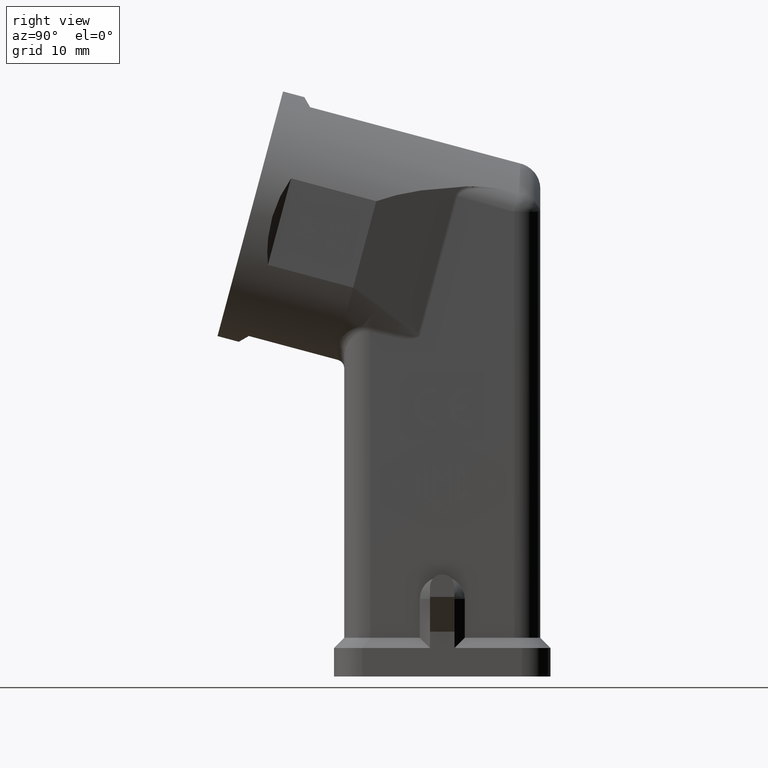
[diagram: clean part render]
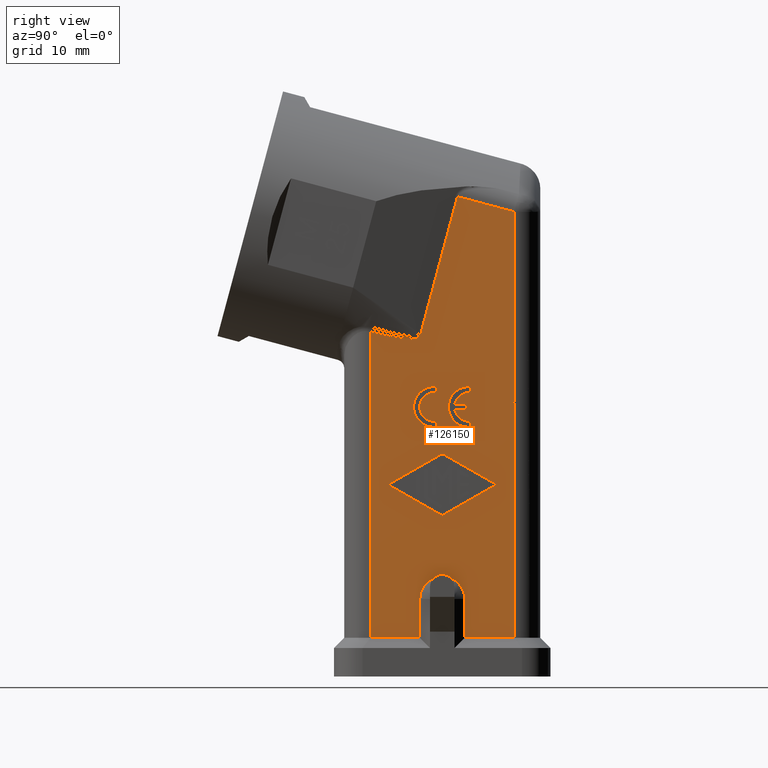
[diagram: same view with one face highlighted and labeled with its STEP entity id]
A machine part, right view. The second image highlights one B-rep face of the part: STEP entity #126150.
In plain terms, the highlighted planar face has unit normal (-1, -0, 0).
Its self-contained STEP definition (entity closure, byte-faithful):
#55330=CARTESIAN_POINT('',(12.,30.2856298515437,27.75));
#55340=VERTEX_POINT('',#55330);
#55520=CARTESIAN_POINT('',(12.,30.2856298515437,31.25));
#55530=VERTEX_POINT('',#55520);
#55560=CARTESIAN_POINT('',(12.,30.2856298515437,29.5));
#55570=DIRECTION('',(1.,-7.43639950456472E-17,0.));
#55580=DIRECTION('',(7.43639950456472E-17,1.,-1.49975978266186E-32));
#55590=AXIS2_PLACEMENT_3D('',#55560,#55570,#55580);
#55600=CIRCLE('',#55590,1.75);
#55610=EDGE_CURVE('',#55530,#55340,#55600,.T.);
#89820=CARTESIAN_POINT('',(12.,40.0856298515438,1.25));
#89830=VERTEX_POINT('',#89820);
#91130=CARTESIAN_POINT('',(12.,34.0356298515438,-3.5));
#91140=DIRECTION('',(0.,0.,1.));
#91150=VECTOR('',#91140,1.);
#91160=LINE('',#91130,#91150);
#91170=CARTESIAN_POINT('',(12.,34.0356298515438,1.25));
#91180=VERTEX_POINT('',#91170);
#91190=CARTESIAN_POINT('',(12.,34.0356298515438,6.));
#91200=VERTEX_POINT('',#91190);
#91210=EDGE_CURVE('',#91180,#91200,#91160,.T.);
#92410=CARTESIAN_POINT('',(12.,22.4856298515438,38.6973022111864));
#92420=VERTEX_POINT('',#92410);
#92450=CARTESIAN_POINT('',(12.,22.4856298515438,-3.5));
#92460=DIRECTION('',(0.,0.,1.));
#92470=VECTOR('',#92460,1.);
#92480=LINE('',#92450,#92470);
#92490=CARTESIAN_POINT('',(12.,22.4856298515438,1.25));
#92500=VERTEX_POINT('',#92490);
#92510=EDGE_CURVE('',#92500,#92420,#92480,.T.);
#99270=CARTESIAN_POINT('',(12.,1.44500153395515E-15,1.25));
#99280=DIRECTION('',(4.60527994506155E-17,-1.,-3.97228643331991E-17));
#99290=VECTOR('',#99280,1.);
#99300=LINE('',#99270,#99290);
#99310=EDGE_CURVE('',#89830,#91180,#99300,.T.);
#99530=CARTESIAN_POINT('',(12.,30.2856298515437,27.));
#99540=VERTEX_POINT('',#99530);
#99710=CARTESIAN_POINT('',(12.,30.5356298515438,27.));
#99720=VERTEX_POINT('',#99710);
#99750=CARTESIAN_POINT('',(12.,0.,27.));
#99760=DIRECTION('',(4.60527994506155E-17,-1.,2.46519032881566E-32));
#99770=VECTOR('',#99760,1.);
#99780=LINE('',#99750,#99770);
#99790=EDGE_CURVE('',#99720,#99540,#99780,.T.);
#104590=CARTESIAN_POINT('',(12.,30.5356298515438,27.75));
#104600=VERTEX_POINT('',#104590);
#104720=CARTESIAN_POINT('',(12.,0.,27.75));
#104730=DIRECTION('',(-4.60527994506155E-17,1.,-2.46519032881566E-32));
#104740=VECTOR('',#104730,1.);
#104750=LINE('',#104720,#104740);
#104760=EDGE_CURVE('',#55340,#104600,#104750,.T.);
#105960=CARTESIAN_POINT('',(12.,30.2856298515437,32.));
#105970=VERTEX_POINT('',#105960);
#106100=CARTESIAN_POINT('',(12.,30.2856298515437,29.5));
#106110=DIRECTION('',(1.,-7.43639950456472E-17,0.));
#106120=DIRECTION('',(7.43639950456472E-17,1.,-1.49975978266186E-32));
#106130=AXIS2_PLACEMENT_3D('',#106100,#106110,#106120);
#106140=CIRCLE('',#106130,2.5);
#106150=EDGE_CURVE('',#105970,#99540,#106140,.T.);
#110660=CARTESIAN_POINT('',(12.,28.6650454124902,38.4918329904324));
#110670=VERTEX_POINT('',#110660);
#110700=CARTESIAN_POINT('',(12.,28.6650454124902,38.4918329904324));
#110710=CARTESIAN_POINT('',(12.,28.658407552892,38.4710673852753));
#110720=CARTESIAN_POINT('',(12.,28.6513634272172,38.450508087265));
#110730=CARTESIAN_POINT('',(12.,28.640005236563,38.4200184276398));
#110740=CARTESIAN_POINT('',(12.,28.6360871726545,38.4099134223298));
#110750=CARTESIAN_POINT('',(12.,28.6279566102855,38.3898264786181));
#110760=CARTESIAN_POINT('',(12.,28.6237441118251,38.3798445402164));
#110770=CARTESIAN_POINT('',(12.,28.6149942465141,38.3600103680997));
#110780=CARTESIAN_POINT('',(12.,28.6104568796637,38.3501581343847));
#110790=CARTESIAN_POINT('',(12.,28.6010268437349,38.3305900094197));
#110800=CARTESIAN_POINT('',(12.,28.5961341746566,38.3208741181697));
#110810=CARTESIAN_POINT('',(12.,28.5859631004341,38.301585315913));
#110820=CARTESIAN_POINT('',(12.,28.5806846952899,38.2920124049062));
#110830=CARTESIAN_POINT('',(12.,28.5697117150978,38.2730162009143));
#110840=CARTESIAN_POINT('',(12.,28.5640171400499,38.2635929079292));
#110850=CARTESIAN_POINT('',(12.,28.5422303388771,38.2291884658578));
#110860=CARTESIAN_POINT('',(12.,28.5248991979087,38.2047668972134));
#110870=CARTESIAN_POINT('',(12.,28.4877035721447,38.1581561523663));
#110880=CARTESIAN_POINT('',(12.,28.467745836338,38.1358291851535));
#110890=CARTESIAN_POINT('',(12.,28.4255784797306,38.0936843482291));
#110900=CARTESIAN_POINT('',(12.,28.4032391209673,38.0737504443455));
#110910=CARTESIAN_POINT('',(12.,28.3545579582244,38.0347802246168));
#110920=CARTESIAN_POINT('',(12.,28.327907826425,38.0159319652352));
#110930=CARTESIAN_POINT('',(12.,28.2728658799483,37.9812144629596));
#110940=CARTESIAN_POINT('',(12.,28.2443990404622,37.9653500827794));
#110950=CARTESIAN_POINT('',(12.,28.1860840457942,37.9362996585203));
#110960=CARTESIAN_POINT('',(12.,28.1562294124759,37.9231676043697));
#110970=CARTESIAN_POINT('',(12.,28.0955300982708,37.8993005289112));
#110980=CARTESIAN_POINT('',(12.,28.0647391966876,37.8886281919675));
#110990=CARTESIAN_POINT('',(12.,28.006616458634,37.8706606655363));
#111000=CARTESIAN_POINT('',(12.,27.9794147616235,37.8631410243454));
#111010=CARTESIAN_POINT('',(12.,27.9245900709717,37.8494780249132));
#111020=CARTESIAN_POINT('',(12.,27.8970221223199,37.8433651991255));
#111030=CARTESIAN_POINT('',(12.,27.8415870327101,37.8323541313501));
#111040=CARTESIAN_POINT('',(12.,27.8137589565411,37.8274761711359));
#111050=CARTESIAN_POINT('',(12.,27.7578967632835,37.8187906204405));
#111060=CARTESIAN_POINT('',(12.,27.7298972606536,37.8149973351577));
#111070=CARTESIAN_POINT('',(12.,27.6736914499364,37.8083455470819));
#111080=CARTESIAN_POINT('',(12.,27.6455148721196,37.8054993692921));
#111090=CARTESIAN_POINT('',(12.,27.5890617736708,37.8006418477416));
#111100=CARTESIAN_POINT('',(12.,27.5608106159297,37.7986377319102));
#111110=CARTESIAN_POINT('',(12.,27.5042382844447,37.7953683310848));
#111120=CARTESIAN_POINT('',(12.,27.4759385339948,37.7941082154366));
#111130=CARTESIAN_POINT('',(12.,27.4192977710309,37.7922448914528));
#111140=CARTESIAN_POINT('',(12.,27.390966331199,37.7916451237086));
#111150=CARTESIAN_POINT('',(12.,27.3240721837864,37.7909211663011));
#111160=CARTESIAN_POINT('',(12.,27.2855314631041,37.7910504364708));
#111170=CARTESIAN_POINT('',(12.,27.2084590114915,37.7922408625056));
#111180=CARTESIAN_POINT('',(12.,27.1699434442842,37.7933056959957));
#111190=CARTESIAN_POINT('',(12.,27.0929128806058,37.7962445365984));
#111200=CARTESIAN_POINT('',(12.,27.0544220422504,37.7981208380777));
#111210=CARTESIAN_POINT('',(12.,26.9774599848056,37.8025808610107));
#111220=CARTESIAN_POINT('',(12.,26.938986942153,37.8051673898098));
#111230=CARTESIAN_POINT('',(12.,26.8235676167094,37.8138638257092));
#111240=CARTESIAN_POINT('',(12.,26.746746595908,37.8209054801531));
#111250=CARTESIAN_POINT('',(12.,26.5933187372588,37.8369297530774));
#111260=CARTESIAN_POINT('',(12.,26.5167428511693,37.8459179176196));
#111270=CARTESIAN_POINT('',(12.,26.363607012519,37.8654773456315));
#111280=CARTESIAN_POINT('',(12.,26.2871092124393,37.8760494259959));
#111290=CARTESIAN_POINT('',(12.,26.1342507567469,37.8984800954264));
#111300=CARTESIAN_POINT('',(12.,26.0579346819524,37.9103362639241));
#111310=CARTESIAN_POINT('',(12.,25.9054336067749,37.9351163859407));
#111320=CARTESIAN_POINT('',(12.,25.8292816446662,37.9480377591914));
#111330=CARTESIAN_POINT('',(12.,25.6771064886169,37.9747767345691));
#111340=CARTESIAN_POINT('',(12.,25.6010982432039,37.988593681349));
#111350=CARTESIAN_POINT('',(12.,25.4123469376281,38.0238779191191));
#111360=CARTESIAN_POINT('',(12.,25.2997244000594,38.0457956653496));
#111370=CARTESIAN_POINT('',(12.,25.0747345942343,38.0909605736123));
#111380=CARTESIAN_POINT('',(12.,24.9623920159077,38.1142058224532));
#111390=CARTESIAN_POINT('',(12.,24.7378953939933,38.161783659728));
#111400=CARTESIAN_POINT('',(12.,24.6257737688567,38.1861115129705));
#111410=CARTESIAN_POINT('',(12.,24.4017005251958,38.2356640052048));
#111420=CARTESIAN_POINT('',(12.,24.2897728626986,38.260884722897));
#111430=CARTESIAN_POINT('',(12.,24.0660546117315,38.3120792464462));
#111440=CARTESIAN_POINT('',(12.,23.9542821474078,38.3380499254154));
#111450=CARTESIAN_POINT('',(12.,23.7308703220644,38.3906263278114));
#111460=CARTESIAN_POINT('',(12.,23.6192448946684,38.4172294133321));
#111470=CARTESIAN_POINT('',(12.,23.3961115903248,38.4709791742857));
#111480=CARTESIAN_POINT('',(12.,23.2846146124877,38.4981236801033));
#111490=CARTESIAN_POINT('',(12.,23.0617259844366,38.5528824556693));
#111500=CARTESIAN_POINT('',(12.,22.9503352739161,38.5804968525072));
#111510=CARTESIAN_POINT('',(12.,22.7405286030522,38.6329173647574));
#111520=CARTESIAN_POINT('',(12.,22.6420817108826,38.657683344178));
#111530=CARTESIAN_POINT('',(12.,22.5243303011453,38.6874882973221));
#111540=CARTESIAN_POINT('',(12.,22.5049790009391,38.6923929160214));
#111550=CARTESIAN_POINT('',(12.,22.4856298515438,38.6973022111864));
#111560=B_SPLINE_CURVE_WITH_KNOTS('',3,(#110700,#110710,#110720,#110730,
#110740,#110750,#110760,#110770,#110780,#110790,#110800,#110810,#110820,
#110830,#110840,#110850,#110860,#110870,#110880,#110890,#110900,#110910,
#110920,#110930,#110940,#110950,#110960,#110970,#110980,#110990,#111000,
#111010,#111020,#111030,#111040,#111050,#111060,#111070,#111080,#111090,
#111100,#111110,#111120,#111130,#111140,#111150,#111160,#111170,#111180,
#111190,#111200,#111210,#111220,#111230,#111240,#111250,#111260,#111270,
#111280,#111290,#111300,#111310,#111320,#111330,#111340,#111350,#111360,
#111370,#111380,#111390,#111400,#111410,#111420,#111430,#111440,#111450,
#111460,#111470,#111480,#111490,#111500,#111510,#111520,#111530,#111540,
#111550),.UNSPECIFIED.,.F.,.F.,(4,2,2,2,2,2,2,2,2,2,2,2,2,2,2,2,2,2,2,2,
2,2,2,2,2,2,2,2,2,2,2,2,2,2,2,2,2,2,2,2,2,2,4),(0.,0.0510548597011025,
0.0765822895516538,0.102109719402205,0.127637149252756,0.153164579103308
,0.178692008953859,0.20421943880441,0.272671834191601,0.340791662066526,
0.409146956972404,0.484547283432192,0.561134069813424,0.639157530269928,
0.718429125350752,0.78798390505569,0.858272511445346,0.929228211284645,
1.00073318046745,1.07286982653449,1.14541638244757,1.2183273262159,
1.29154681436494,1.39155940965001,1.49199133918958,1.59278751429417,
1.6938862814274,1.89692820072619,2.10076570852031,2.3055181723223,
2.51075657525815,2.71639632828941,2.9223538963059,3.22871651890558,
3.5355253212858,3.84269144231133,4.15013397006058,4.45783521326652,
4.76571717360164,5.073749103248,5.38190366820679,5.65458693547201,
5.70821173584968),.UNSPECIFIED.);
#111570=EDGE_CURVE('',#110670,#92420,#111560,.T.);
#111880=CARTESIAN_POINT('',(12.,28.5356298515438,6.));
#111890=VERTEX_POINT('',#111880);
#111920=CARTESIAN_POINT('',(12.,31.2856298515438,6.));
#111930=DIRECTION('',(1.,4.60527994506155E-17,0.));
#111940=DIRECTION('',(-4.60527994506155E-17,1.,0.));
#111950=AXIS2_PLACEMENT_3D('',#111920,#111930,#111940);
#111960=CIRCLE('',#111950,2.75);
#111970=EDGE_CURVE('',#91200,#111890,#111960,.T.);
#123090=CARTESIAN_POINT('',(12.,31.2856298515438,54.5));
#123100=DIRECTION('',(-1.,-4.60527994506155E-17,0.));
#123110=DIRECTION('',(4.60527994506155E-17,-1.,0.));
#123120=AXIS2_PLACEMENT_3D('',#123090,#123100,#123110);
#123130=PLANE('',#123120);
#123140=CARTESIAN_POINT('',(12.,0.,34.0946554747745));
#123150=DIRECTION('',(5.55111512312578E-17,-0.868182047616833,
0.496245838467028));
#123160=VECTOR('',#123150,1.);
#123170=LINE('',#123140,#123160);
#123180=CARTESIAN_POINT('',(12.,31.161568391927,16.282954948315));
#123190=VERTEX_POINT('',#123180);
#123200=CARTESIAN_POINT('',(12.,24.848669068167,19.8913571569032));
#123210=VERTEX_POINT('',#123200);
#123220=EDGE_CURVE('',#123190,#123210,#123170,.T.);
#123230=ORIENTED_EDGE('',*,*,#123220,.T.);
#123240=CARTESIAN_POINT('',(12.,31.2856298515438,16.5000004602192));
#123250=DIRECTION('',(1.,-7.43639950456472E-17,0.));
#123260=DIRECTION('',(7.43639950456472E-17,1.,0.));
#123270=AXIS2_PLACEMENT_3D('',#123240,#123250,#123260);
#123280=CIRCLE('',#123270,0.25);
#123290=CARTESIAN_POINT('',(12.,31.4096933989656,16.2829561417008));
#123300=VERTEX_POINT('',#123290);
#123310=EDGE_CURVE('',#123190,#123300,#123280,.T.);
#123320=ORIENTED_EDGE('',*,*,#123310,.F.);
#123330=CARTESIAN_POINT('',(12.,0.,-1.67097148519786));
#123340=DIRECTION('',(5.55111512312578E-17,-0.868177274073498,
-0.496254189687413));
#123350=VECTOR('',#123340,1.);
#123360=LINE('',#123330,#123350);
#123370=CARTESIAN_POINT('',(12.,37.7226616252547,19.89147830096));
#123380=VERTEX_POINT('',#123370);
#123390=EDGE_CURVE('',#123380,#123300,#123360,.T.);
#123400=ORIENTED_EDGE('',*,*,#123390,.T.);
#123410=CARTESIAN_POINT('',(12.,37.6606298515438,20.0000004602192));
#123420=DIRECTION('',(1.,-7.43639950456472E-17,0.));
#123430=DIRECTION('',(7.43639950456472E-17,1.,0.));
#123440=AXIS2_PLACEMENT_3D('',#123410,#123420,#123430);
#123450=CIRCLE('',#123440,0.124999999999986);
#123460=CARTESIAN_POINT('',(12.,37.7226616252547,20.1085226194784));
#123470=VERTEX_POINT('',#123460);
#123480=EDGE_CURVE('',#123380,#123470,#123450,.T.);
#123490=ORIENTED_EDGE('',*,*,#123480,.F.);
#123500=CARTESIAN_POINT('',(12.,0.,41.6709724056362));
#123510=DIRECTION('',(-5.55111512312578E-17,0.868177274073498,
-0.496254189687413));
#123520=VECTOR('',#123510,1.);
#123530=LINE('',#123500,#123520);
#123540=CARTESIAN_POINT('',(12.,31.4096933989657,23.7170447787376));
#123550=VERTEX_POINT('',#123540);
#123560=EDGE_CURVE('',#123550,#123470,#123530,.T.);
#123570=ORIENTED_EDGE('',*,*,#123560,.T.);
#123580=CARTESIAN_POINT('',(12.,31.2856298515438,23.5000004602192));
#123590=DIRECTION('',(1.,-7.43639950456472E-17,0.));
#123600=DIRECTION('',(7.43639950456472E-17,1.,0.));
#123610=AXIS2_PLACEMENT_3D('',#123580,#123590,#123600);
#123620=CIRCLE('',#123610,0.25);
#123630=CARTESIAN_POINT('',(12.,31.161568391927,23.7170459721234));
#123640=VERTEX_POINT('',#123630);
#123650=EDGE_CURVE('',#123550,#123640,#123620,.T.);
#123660=ORIENTED_EDGE('',*,*,#123650,.F.);
#123670=CARTESIAN_POINT('',(12.,0.,5.90534544566343));
#123680=DIRECTION('',(-5.55111512312578E-17,0.868182047616828,
0.496245838467037));
#123690=VECTOR('',#123680,1.);
#123700=LINE('',#123670,#123690);
#123710=CARTESIAN_POINT('',(12.,24.848669068167,20.1086437635351));
#123720=VERTEX_POINT('',#123710);
#123730=EDGE_CURVE('',#123720,#123640,#123700,.T.);
#123740=ORIENTED_EDGE('',*,*,#123730,.T.);
#123750=CARTESIAN_POINT('',(12.,24.9107687018738,20.0000004602192));
#123760=DIRECTION('',(1.,-7.43639950456472E-17,0.));
#123770=DIRECTION('',(7.43639950456472E-17,1.,0.));
#123780=AXIS2_PLACEMENT_3D('',#123750,#123760,#123770);
#123790=CIRCLE('',#123780,0.125138850329995);
#123800=EDGE_CURVE('',#123720,#123210,#123790,.T.);
#123810=ORIENTED_EDGE('',*,*,#123800,.F.);
#123820=EDGE_LOOP('',(#123810,#123740,#123660,#123570,#123490,#123400,
#123320,#123230));
#123830=FACE_BOUND('',#123820,.T.);
#123840=CARTESIAN_POINT('',(12.,30.5356298515438,-1.));
#123850=DIRECTION('',(0.,-1.49975978266186E-32,-1.));
#123860=VECTOR('',#123850,1.);
#123870=LINE('',#123840,#123860);
#123880=CARTESIAN_POINT('',(12.,30.5356298515438,32.));
#123890=VERTEX_POINT('',#123880);
#123900=CARTESIAN_POINT('',(12.,30.5356298515438,31.25));
#123910=VERTEX_POINT('',#123900);
#123920=EDGE_CURVE('',#123890,#123910,#123870,.T.);
#123930=ORIENTED_EDGE('',*,*,#123920,.T.);
#123940=CARTESIAN_POINT('',(12.,0.,32.));
#123950=DIRECTION('',(-4.60527994506155E-17,1.,-2.46519032881566E-32));
#123960=VECTOR('',#123950,1.);
#123970=LINE('',#123940,#123960);
#123980=EDGE_CURVE('',#105970,#123890,#123970,.T.);
#123990=ORIENTED_EDGE('',*,*,#123980,.T.);
#124000=ORIENTED_EDGE('',*,*,#106150,.F.);
#124010=ORIENTED_EDGE('',*,*,#99790,.T.);
#124020=CARTESIAN_POINT('',(12.,30.5356298515438,-1.));
#124030=DIRECTION('',(0.,-1.49975978266186E-32,-1.));
#124040=VECTOR('',#124030,1.);
#124050=LINE('',#124020,#124040);
#124060=EDGE_CURVE('',#104600,#99720,#124050,.T.);
#124070=ORIENTED_EDGE('',*,*,#124060,.T.);
#124080=ORIENTED_EDGE('',*,*,#104760,.T.);
#124090=ORIENTED_EDGE('',*,*,#55610,.T.);
#124100=CARTESIAN_POINT('',(12.,0.,31.25));
#124110=DIRECTION('',(4.60527994506155E-17,-1.,2.46519032881566E-32));
#124120=VECTOR('',#124110,1.);
#124130=LINE('',#124100,#124120);
#124140=EDGE_CURVE('',#123910,#55530,#124130,.T.);
#124150=ORIENTED_EDGE('',*,*,#124140,.T.);
#124160=EDGE_LOOP('',(#124150,#124090,#124080,#124070,#124010,#124000,
#123990,#123930));
#124170=FACE_BOUND('',#124160,.T.);
#124180=CARTESIAN_POINT('',(12.,0.,29.125));
#124190=DIRECTION('',(4.60527994506155E-17,-1.,2.46519032881566E-32));
#124200=VECTOR('',#124190,1.);
#124210=LINE('',#124180,#124200);
#124220=CARTESIAN_POINT('',(12.,34.2856298515438,29.125));
#124230=VERTEX_POINT('',#124220);
#124240=CARTESIAN_POINT('',(12.,32.8262805601465,29.125));
#124250=VERTEX_POINT('',#124240);
#124260=EDGE_CURVE('',#124230,#124250,#124210,.T.);
#124270=ORIENTED_EDGE('',*,*,#124260,.T.);
#124280=CARTESIAN_POINT('',(12.,34.2856298515438,-1.));
#124290=DIRECTION('',(0.,-1.49975978266186E-32,-1.));
#124300=VECTOR('',#124290,1.);
#124310=LINE('',#124280,#124300);
#124320=CARTESIAN_POINT('',(12.,34.2856298515438,29.875));
#124330=VERTEX_POINT('',#124320);
#124340=EDGE_CURVE('',#124330,#124230,#124310,.T.);
#124350=ORIENTED_EDGE('',*,*,#124340,.T.);
#124360=CARTESIAN_POINT('',(12.,0.,29.875));
#124370=DIRECTION('',(-4.60527994506155E-17,1.,-2.46519032881566E-32));
#124380=VECTOR('',#124370,1.);
#124390=LINE('',#124360,#124380);
#124400=CARTESIAN_POINT('',(12.,32.8262805601467,29.875));
#124410=VERTEX_POINT('',#124400);
#124420=EDGE_CURVE('',#124410,#124330,#124390,.T.);
#124430=ORIENTED_EDGE('',*,*,#124420,.T.);
#124440=CARTESIAN_POINT('',(12.,34.5356298515438,29.5));
#124450=DIRECTION('',(1.,-7.43639950456472E-17,0.));
#124460=DIRECTION('',(7.43639950456472E-17,1.,-1.49975978266186E-32));
#124470=AXIS2_PLACEMENT_3D('',#124440,#124450,#124460);
#124480=CIRCLE('',#124470,1.75);
#124490=CARTESIAN_POINT('',(12.,34.5356298515438,31.25));
#124500=VERTEX_POINT('',#124490);
#124510=EDGE_CURVE('',#124500,#124410,#124480,.T.);
#124520=ORIENTED_EDGE('',*,*,#124510,.T.);
#124530=CARTESIAN_POINT('',(12.,0.,31.25));
#124540=DIRECTION('',(4.60527994506155E-17,-1.,2.46519032881566E-32));
#124550=VECTOR('',#124540,1.);
#124560=LINE('',#124530,#124550);
#124570=CARTESIAN_POINT('',(12.,34.7856298515438,31.25));
#124580=VERTEX_POINT('',#124570);
#124590=EDGE_CURVE('',#124580,#124500,#124560,.T.);
#124600=ORIENTED_EDGE('',*,*,#124590,.T.);
#124610=CARTESIAN_POINT('',(12.,34.7856298515438,-1.));
#124620=DIRECTION('',(0.,-1.49975978266186E-32,-1.));
#124630=VECTOR('',#124620,1.);
#124640=LINE('',#124610,#124630);
#124650=CARTESIAN_POINT('',(12.,34.7856298515438,32.));
#124660=VERTEX_POINT('',#124650);
#124670=EDGE_CURVE('',#124660,#124580,#124640,.T.);
#124680=ORIENTED_EDGE('',*,*,#124670,.T.);
#124690=CARTESIAN_POINT('',(12.,0.,32.));
#124700=DIRECTION('',(-4.60527994506155E-17,1.,-2.46519032881566E-32));
#124710=VECTOR('',#124700,1.);
#124720=LINE('',#124690,#124710);
#124730=CARTESIAN_POINT('',(12.,34.5356298515438,32.));
#124740=VERTEX_POINT('',#124730);
#124750=EDGE_CURVE('',#124740,#124660,#124720,.T.);
#124760=ORIENTED_EDGE('',*,*,#124750,.T.);
#124770=CARTESIAN_POINT('',(12.,34.5356298515438,29.5));
#124780=DIRECTION('',(1.,-7.43639950456472E-17,0.));
#124790=DIRECTION('',(7.43639950456472E-17,1.,-1.49975978266186E-32));
#124800=AXIS2_PLACEMENT_3D('',#124770,#124780,#124790);
#124810=CIRCLE('',#124800,2.5);
#124820=CARTESIAN_POINT('',(12.,34.5356298515438,27.));
#124830=VERTEX_POINT('',#124820);
#124840=EDGE_CURVE('',#124740,#124830,#124810,.T.);
#124850=ORIENTED_EDGE('',*,*,#124840,.F.);
#124860=CARTESIAN_POINT('',(12.,0.,27.));
#124870=DIRECTION('',(4.60527994506155E-17,-1.,2.46519032881566E-32));
#124880=VECTOR('',#124870,1.);
#124890=LINE('',#124860,#124880);
#124900=CARTESIAN_POINT('',(12.,34.7856298515438,27.));
#124910=VERTEX_POINT('',#124900);
#124920=EDGE_CURVE('',#124910,#124830,#124890,.T.);
#124930=ORIENTED_EDGE('',*,*,#124920,.T.);
#124940=CARTESIAN_POINT('',(12.,34.7856298515438,-1.));
#124950=DIRECTION('',(0.,-1.49975978266186E-32,-1.));
#124960=VECTOR('',#124950,1.);
#124970=LINE('',#124940,#124960);
#124980=CARTESIAN_POINT('',(12.,34.7856298515438,27.75));
#124990=VERTEX_POINT('',#124980);
#125000=EDGE_CURVE('',#124990,#124910,#124970,.T.);
#125010=ORIENTED_EDGE('',*,*,#125000,.T.);
#125020=CARTESIAN_POINT('',(12.,0.,27.75));
#125030=DIRECTION('',(-4.60527994506155E-17,1.,-2.46519032881566E-32));
#125040=VECTOR('',#125030,1.);
#125050=LINE('',#125020,#125040);
#125060=CARTESIAN_POINT('',(12.,34.5356298515438,27.75));
#125070=VERTEX_POINT('',#125060);
#125080=EDGE_CURVE('',#125070,#124990,#125050,.T.);
#125090=ORIENTED_EDGE('',*,*,#125080,.T.);
#125100=CARTESIAN_POINT('',(12.,34.5356298515438,29.5));
#125110=DIRECTION('',(1.,-7.43639950456472E-17,0.));
#125120=DIRECTION('',(7.43639950456472E-17,1.,-1.49975978266186E-32));
#125130=AXIS2_PLACEMENT_3D('',#125100,#125110,#125120);
#125140=CIRCLE('',#125130,1.75000000000013);
#125150=EDGE_CURVE('',#124250,#125070,#125140,.T.);
#125160=ORIENTED_EDGE('',*,*,#125150,.T.);
#125170=EDGE_LOOP('',(#125160,#125090,#125010,#124930,#124850,#124760,
#124680,#124600,#124520,#124430,#124350,#124270));
#125180=FACE_BOUND('',#125170,.T.);
#125190=CARTESIAN_POINT('',(12.,28.6650454124902,38.4918329904324));
#125200=CARTESIAN_POINT('',(12.,28.667297590119,38.5002382317706));
#125210=CARTESIAN_POINT('',(12.,28.6695497677477,38.5086434731087));
#125220=CARTESIAN_POINT('',(12.,28.762553768582,38.8557391295294));
#125230=CARTESIAN_POINT('',(12.,28.8533055917875,39.1944295446119));
#125240=CARTESIAN_POINT('',(12.,28.9626582151599,39.6025390909786));
#125250=CARTESIAN_POINT('',(12.,28.9812590153268,39.6719582222627));
#125260=CARTESIAN_POINT('',(12.,29.0184606156605,39.810796484831));
#125270=CARTESIAN_POINT('',(12.,29.0370614158273,39.8802156161151));
#125280=CARTESIAN_POINT('',(12.,29.074263016161,40.0190538786834));
#125290=CARTESIAN_POINT('',(12.,29.0928638163279,40.0884730099675));
#125300=CARTESIAN_POINT('',(12.,29.1672670169953,40.3661495351041));
#125310=CARTESIAN_POINT('',(12.,29.2788718179964,40.7826643228089));
#125320=CARTESIAN_POINT('',(12.,29.3904766189975,41.1991791105137));
#125330=CARTESIAN_POINT('',(12.,29.5578838204992,41.8239512920709));
#125340=CARTESIAN_POINT('',(12.,29.6694886215004,42.2404660797757));
#125350=CARTESIAN_POINT('',(12.,29.9531508240449,43.2991078318588));
#125360=CARTESIAN_POINT('',(12.,30.1252082255883,43.941234796237));
#125370=CARTESIAN_POINT('',(12.,30.4693230286751,45.2254887249935));
#125380=CARTESIAN_POINT('',(12.,30.6413804302185,45.8676156893718));
#125390=CARTESIAN_POINT('',(12.,30.8227382318453,46.5444522193921));
#125400=CARTESIAN_POINT('',(12.,30.8320386319287,46.5791617850342));
#125410=CARTESIAN_POINT('',(12.,30.8506394320956,46.6485809163183));
#125420=CARTESIAN_POINT('',(12.,30.859939832179,46.6832904819604));
#125430=CARTESIAN_POINT('',(12.,30.8762884547171,46.7443043719063));
#125440=CARTESIAN_POINT('',(12.,30.8833366771718,46.7706086962102));
#125450=CARTESIAN_POINT('',(12.,30.8926370772552,46.8053182618523));
#125460=CARTESIAN_POINT('',(12.,30.894889254884,46.8137235031905));
#125470=CARTESIAN_POINT('',(12.,30.8993936101415,46.8305339858668));
#125480=CARTESIAN_POINT('',(12.,30.9016457877702,46.838939227205));
#125490=CARTESIAN_POINT('',(12.,30.9195734893983,46.9058463205439));
#125500=CARTESIAN_POINT('',(12.,30.9352490133976,46.9643481725446));
#125510=CARTESIAN_POINT('',(12.,30.9602249375216,47.0575595903413));
#125520=CARTESIAN_POINT('',(12.,30.9695253376463,47.0922691561373));
#125530=CARTESIAN_POINT('',(12.,30.9881261378956,47.1616882877292));
#125540=CARTESIAN_POINT('',(12.,30.9974265380203,47.1963978535252));
#125550=CARTESIAN_POINT('',(12.,31.1787843485622,47.8732344168172));
#125560=CARTESIAN_POINT('',(12.,31.3508417589795,48.5153614143132));
#125570=CARTESIAN_POINT('',(12.,31.6949565798141,49.7996154093052));
#125580=CARTESIAN_POINT('',(12.,31.8670139902313,50.4417424068013));
#125590=CARTESIAN_POINT('',(12.,32.1506761940336,51.5003841635783));
#125600=CARTESIAN_POINT('',(12.,32.2622809874186,51.9168989228593));
#125610=CARTESIAN_POINT('',(12.,32.4296881774961,52.5416710617809));
#125620=CARTESIAN_POINT('',(12.,32.5412929708811,52.9581858210619));
#125630=CARTESIAN_POINT('',(12.,32.6528977642661,53.3747005803429));
#125640=CARTESIAN_POINT('',(12.,32.7273009612079,53.6523770915754));
#125650=CARTESIAN_POINT('',(12.,32.7459017614572,53.7217962231673));
#125660=CARTESIAN_POINT('',(12.,32.7831033619559,53.8606344863512));
#125670=CARTESIAN_POINT('',(12.,32.8017041622052,53.9300536179431));
#125680=CARTESIAN_POINT('',(12.,32.8389057627039,54.068891881127));
#125690=CARTESIAN_POINT('',(12.,32.8575065629532,54.1383110127189));
#125700=CARTESIAN_POINT('',(12.,32.9668592293144,54.546420719522));
#125710=CARTESIAN_POINT('',(12.,33.0576110954263,54.8851112947332));
#125720=CARTESIAN_POINT('',(12.,33.1506150966729,55.2322069526929));
#125730=CARTESIAN_POINT('',(12.,33.1528674732766,55.2406122302912));
#125740=CARTESIAN_POINT('',(12.,33.1551196408554,55.2490174341222));
#125750=(BOUNDED_CURVE() B_SPLINE_CURVE(3,(#125190,#125200,#125210,
#125220,#125230,#125240,#125250,#125260,#125270,#125280,#125290,#125300,
#125310,#125320,#125330,#125340,#125350,#125360,#125370,#125380,#125390,
#125400,#125410,#125420,#125430,#125440,#125450,#125460,#125470,#125480,
#125490,#125500,#125510,#125520,#125530,#125540,#125550,#125560,#125570,
#125580,#125590,#125600,#125610,#125620,#125630,#125640,#125650,#125660,
#125670,#125680,#125690,#125700,#125710,#125720,#125730,#125740),
.UNSPECIFIED.,.F.,.F.) B_SPLINE_CURVE_WITH_KNOTS((4,2,2,2,2,2,1,2,2,2,2,
2,2,2,2,2,2,2,2,2,2,2,1,2,2,2,2,2,4),(0.,0.0261052384489282,
1.07801959645205,1.29362351574246,1.50922743503287,1.72483135432328,
2.37164311219451,3.01845487006574,4.31207838580819,6.30641463924448,
8.30075089268077,8.40855285232598,8.51635481197119,8.59805153316744,
8.62415677161637,8.65026201006447,8.83195873175148,8.93976069187109,
9.04756265199071,11.0418990082189,13.0362353644472,14.3298587918673,
14.9766705055774,15.6234822192875,15.8390861395267,16.0546900597659,
16.2702939800051,17.3222088353056,17.3483135812013),.UNSPECIFIED.) CURVE
() GEOMETRIC_REPRESENTATION_ITEM() RATIONAL_B_SPLINE_CURVE((1.,1.,1.,1.,
1.,1.,1.,1.,1.,1.,1.,1.,1.,1.,1.,1.,1.,1.,1.,1.,1.,1.,1.,1.,1.,1.,1.,1.,
1.,1.,1.,1.,1.,1.,1.,1.,1.,1.,1.,1.,1.,1.,1.,1.,1.,1.,1.,1.,1.,1.,1.,1.,
1.,1.,1.,1.)) REPRESENTATION_ITEM(''));
#125760=CARTESIAN_POINT('',(12.,33.1551196408554,55.2490174341222));
#125770=VERTEX_POINT('',#125760);
#125780=EDGE_CURVE('',#110670,#125770,#125750,.T.);
#125790=ORIENTED_EDGE('',*,*,#125780,.F.);
#125800=CARTESIAN_POINT('',(12.,22.5668535271911,58.0861347885244));
#125810=DIRECTION('',(0.,-0.965925826289068,0.258819045102521));
#125820=VECTOR('',#125810,1.);
#125830=LINE('',#125800,#125820);
#125840=CARTESIAN_POINT('',(12.,40.0856298515438,53.3919928200326));
#125850=VERTEX_POINT('',#125840);
#125860=EDGE_CURVE('',#125850,#125770,#125830,.T.);
#125870=ORIENTED_EDGE('',*,*,#125860,.T.);
#125880=CARTESIAN_POINT('',(12.,40.0856298515438,-3.5));
#125890=DIRECTION('',(0.,0.,1.));
#125900=VECTOR('',#125890,1.);
#125910=LINE('',#125880,#125900);
#125920=EDGE_CURVE('',#89830,#125850,#125910,.T.);
#125930=ORIENTED_EDGE('',*,*,#125920,.T.);
#125940=ORIENTED_EDGE('',*,*,#99310,.F.);
#125950=ORIENTED_EDGE('',*,*,#91210,.F.);
#125960=ORIENTED_EDGE('',*,*,#111970,.F.);
#125970=CARTESIAN_POINT('',(12.,28.5356298515438,-3.5));
#125980=DIRECTION('',(0.,0.,1.));
#125990=VECTOR('',#125980,1.);
#126000=LINE('',#125970,#125990);
#126010=CARTESIAN_POINT('',(12.,28.5356298515438,1.25));
#126020=VERTEX_POINT('',#126010);
#126030=EDGE_CURVE('',#126020,#111890,#126000,.T.);
#126040=ORIENTED_EDGE('',*,*,#126030,.T.);
#126050=CARTESIAN_POINT('',(12.,62.5712597030876,1.25));
#126060=DIRECTION('',(-2.74469855959852E-16,1.,-3.97228643331991E-17));
#126070=VECTOR('',#126060,1.);
#126080=LINE('',#126050,#126070);
#126090=EDGE_CURVE('',#92500,#126020,#126080,.T.);
#126100=ORIENTED_EDGE('',*,*,#126090,.T.);
#126110=ORIENTED_EDGE('',*,*,#92510,.F.);
#126120=ORIENTED_EDGE('',*,*,#111570,.T.);
#126130=EDGE_LOOP('',(#126120,#126110,#126100,#126040,#125960,#125950,
#125940,#125930,#125870,#125790));
#126140=FACE_OUTER_BOUND('',#126130,.T.);
#126150=ADVANCED_FACE('',(#123830,#124170,#125180,#126140),#123130,.F.);